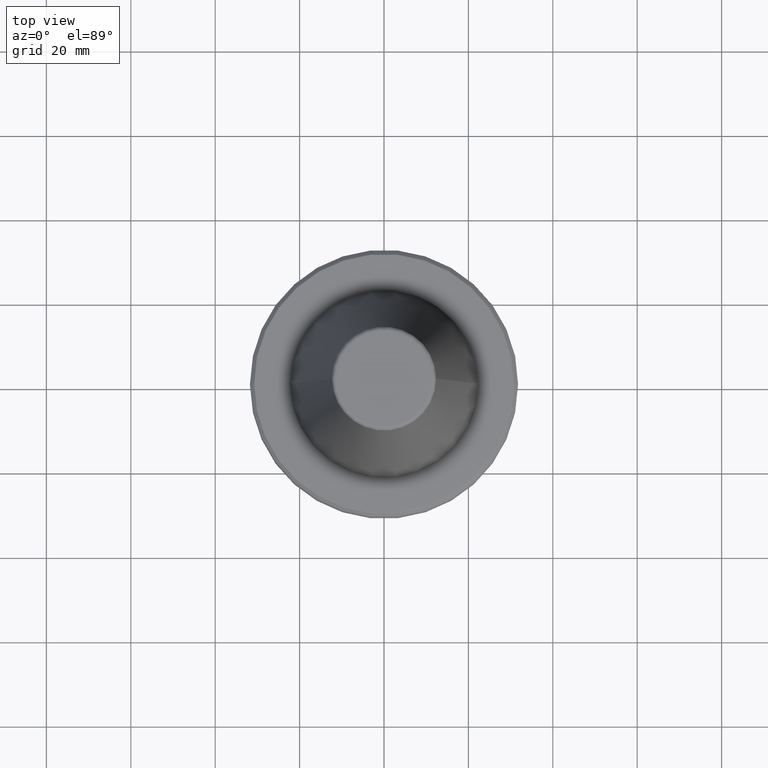
[diagram: clean part render]
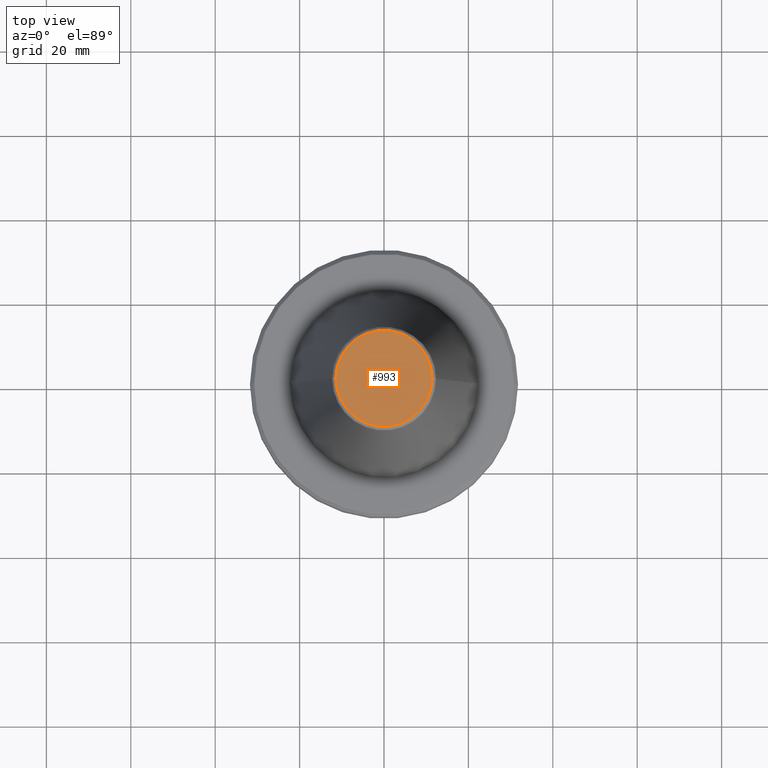
[diagram: same view with one face highlighted and labeled with its STEP entity id]
A machine part, top view. The second image highlights one B-rep face of the part: STEP entity #993.
In plain terms, the highlighted planar face has unit normal (0, -0, 1).
Its self-contained STEP definition (entity closure, byte-faithful):
#35 = DIRECTION ( 'NONE',  ( 0.0000000000000000000, -0.0000000000000000000, 1.000000000000000000 ) ) ;
#217 = CIRCLE ( 'NONE', #1109, 11.38516258961893100 ) ;
#221 = ORIENTED_EDGE ( 'NONE', *, *, #799, .T. ) ;
#255 = DIRECTION ( 'NONE',  ( -0.0000000000000000000, -0.0000000000000000000, 1.000000000000000000 ) ) ;
#457 = CARTESIAN_POINT ( 'NONE',  ( 0.0000000000000000000, 0.0000000000000000000, 68.40000000000000600 ) ) ;
#458 = EDGE_LOOP ( 'NONE', ( #519, #221 ) ) ;
#507 = VERTEX_POINT ( 'NONE', #721 ) ;
#519 = ORIENTED_EDGE ( 'NONE', *, *, #594, .T. ) ;
#531 = CARTESIAN_POINT ( 'NONE',  ( 0.0000000000000000000, -8.337524199435086500E-014, 68.39999999999999100 ) ) ;
#594 = EDGE_CURVE ( 'NONE', #964, #507, #1226, .T. ) ;
#707 = FACE_OUTER_BOUND ( 'NONE', #458, .T. ) ;
#711 = DIRECTION ( 'NONE',  ( 1.000000000000000000, 0.0000000000000000000, 0.0000000000000000000 ) ) ;
#721 = CARTESIAN_POINT ( 'NONE',  ( -11.38516258961893100, 1.454871700296352000E-015, 68.40000000000000600 ) ) ;
#799 = EDGE_CURVE ( 'NONE', #507, #964, #217, .T. ) ;
#921 = DIRECTION ( 'NONE',  ( -0.0000000000000000000, -0.0000000000000000000, 1.000000000000000000 ) ) ;
#964 = VERTEX_POINT ( 'NONE', #1185 ) ;
#993 = ADVANCED_FACE ( 'NONE', ( #707 ), #1096, .T. ) ;
#1023 = CARTESIAN_POINT ( 'NONE',  ( 0.0000000000000000000, 0.0000000000000000000, 68.40000000000000600 ) ) ;
#1096 = PLANE ( 'NONE',  #1228 ) ;
#1108 = DIRECTION ( 'NONE',  ( 1.000000000000000000, 0.0000000000000000000, 0.0000000000000000000 ) ) ;
#1109 = AXIS2_PLACEMENT_3D ( 'NONE', #457, #255, #1108 ) ;
#1118 = DIRECTION ( 'NONE',  ( 1.000000000000000000, 0.0000000000000000000, 0.0000000000000000000 ) ) ;
#1185 = CARTESIAN_POINT ( 'NONE',  ( 11.38516258961893100, 0.0000000000000000000, 68.40000000000000600 ) ) ;
#1217 = AXIS2_PLACEMENT_3D ( 'NONE', #1023, #921, #1118 ) ;
#1226 = CIRCLE ( 'NONE', #1217, 11.38516258961893100 ) ;
#1228 = AXIS2_PLACEMENT_3D ( 'NONE', #531, #35, #711 ) ;